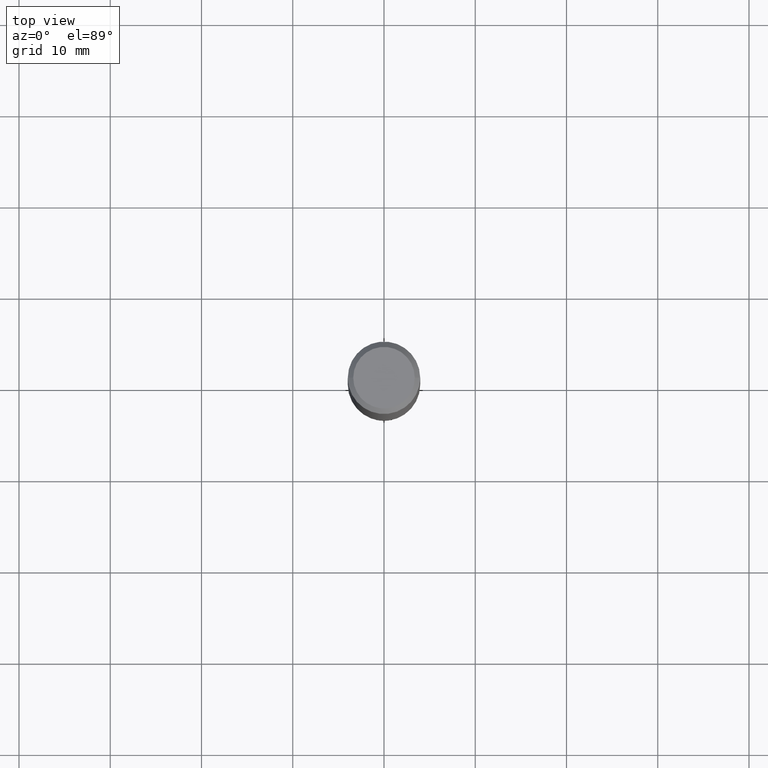
[diagram: clean part render]
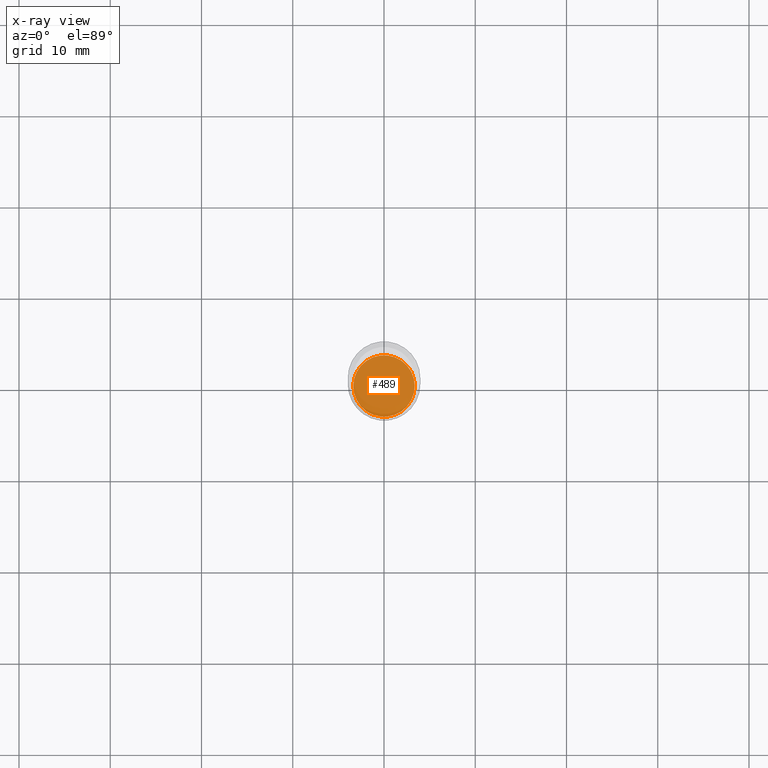
[diagram: x-ray — body ghosted, one internal face saturated and labeled with its STEP entity id]
A machine part, top view, then the same camera in x-ray: the body is ghosted and one INTERNAL B-rep face — a face not visible from any outside direction — is saturated and labeled: STEP entity #489.
In plain terms, the highlighted planar face has unit normal (-0, 0, 1).
Its self-contained STEP definition (entity closure, byte-faithful):
#32 = DIRECTION ( 'NONE',  ( 1.000000000000000000, -6.982962677686262766E-15, 0.000000000000000000 ) ) ;
#36 = FACE_OUTER_BOUND ( 'NONE', #73, .T. ) ;
#37 = AXIS2_PLACEMENT_3D ( 'NONE', #156, #190, #32 ) ;
#72 = AXIS2_PLACEMENT_3D ( 'NONE', #361, #97, #313 ) ;
#73 = EDGE_LOOP ( 'NONE', ( #470, #384 ) ) ;
#83 = EDGE_CURVE ( 'NONE', #238, #371, #101, .T. ) ;
#97 = DIRECTION ( 'NONE',  ( -2.438088387897960049E-29, 3.491481338843145188E-15, 1.000000000000000000 ) ) ;
#101 = CIRCLE ( 'NONE', #37, 0.1325000000000000067 ) ;
#147 = DIRECTION ( 'NONE',  ( 1.000000000000000000, -6.982962677686262766E-15, 0.000000000000000000 ) ) ;
#156 = CARTESIAN_POINT ( 'NONE',  ( 5.082906913655807152E-29, -7.257043962785479847E-15, -2.078500000000000458 ) ) ;
#186 = CARTESIAN_POINT ( 'NONE',  ( -0.1325000000000000067, -6.312925610729235458E-15, -2.078500000000000458 ) ) ;
#190 = DIRECTION ( 'NONE',  ( -2.445468806185136597E-29, 3.491481338843145583E-15, 1.000000000000000000 ) ) ;
#197 = CARTESIAN_POINT ( 'NONE',  ( 0.1325000000000000067, -8.182286517578909871E-15, -2.078500000000000458 ) ) ;
#221 = PLANE ( 'NONE',  #72 ) ;
#238 = VERTEX_POINT ( 'NONE', #197 ) ;
#313 = DIRECTION ( 'NONE',  ( 1.000000000000000000, -6.982962677686265922E-15, 4.876176775795935793E-29 ) ) ;
#315 = EDGE_CURVE ( 'NONE', #371, #238, #425, .T. ) ;
#336 = CARTESIAN_POINT ( 'NONE',  ( 5.082906913655807152E-29, -7.257043962785479847E-15, -2.078500000000000458 ) ) ;
#361 = CARTESIAN_POINT ( 'NONE',  ( 5.082906913655807152E-29, -7.257043962785479847E-15, -2.078500000000000458 ) ) ;
#371 = VERTEX_POINT ( 'NONE', #186 ) ;
#384 = ORIENTED_EDGE ( 'NONE', *, *, #315, .F. ) ;
#398 = AXIS2_PLACEMENT_3D ( 'NONE', #336, #406, #147 ) ;
#406 = DIRECTION ( 'NONE',  ( -2.445468806185136597E-29, 3.491481338843145583E-15, 1.000000000000000000 ) ) ;
#425 = CIRCLE ( 'NONE', #398, 0.1325000000000000067 ) ;
#470 = ORIENTED_EDGE ( 'NONE', *, *, #83, .F. ) ;
#489 = ADVANCED_FACE ( 'NONE', ( #36 ), #221, .F. ) ;